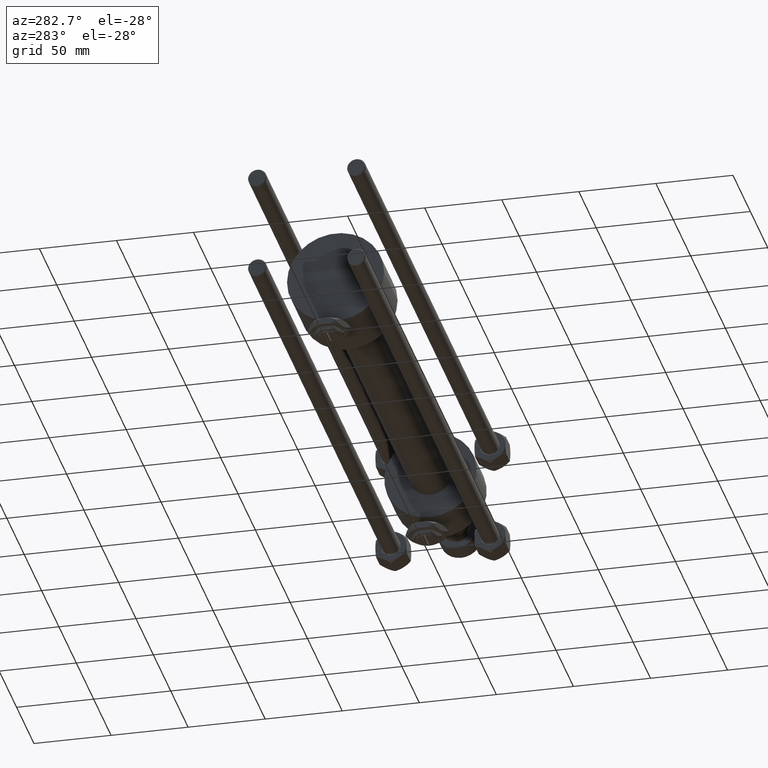
[diagram: clean part render]
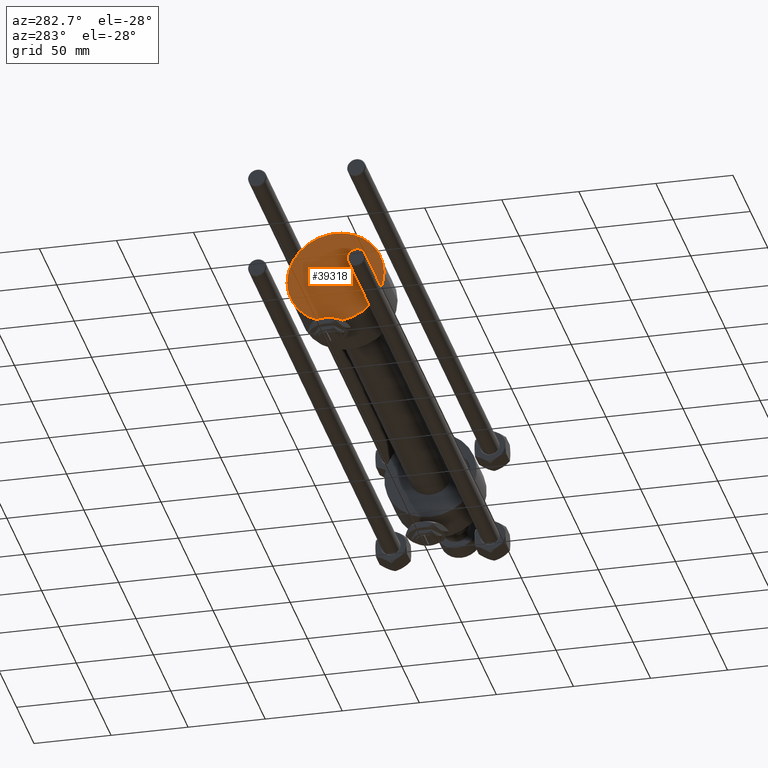
[diagram: same view with one face highlighted and labeled with its STEP entity id]
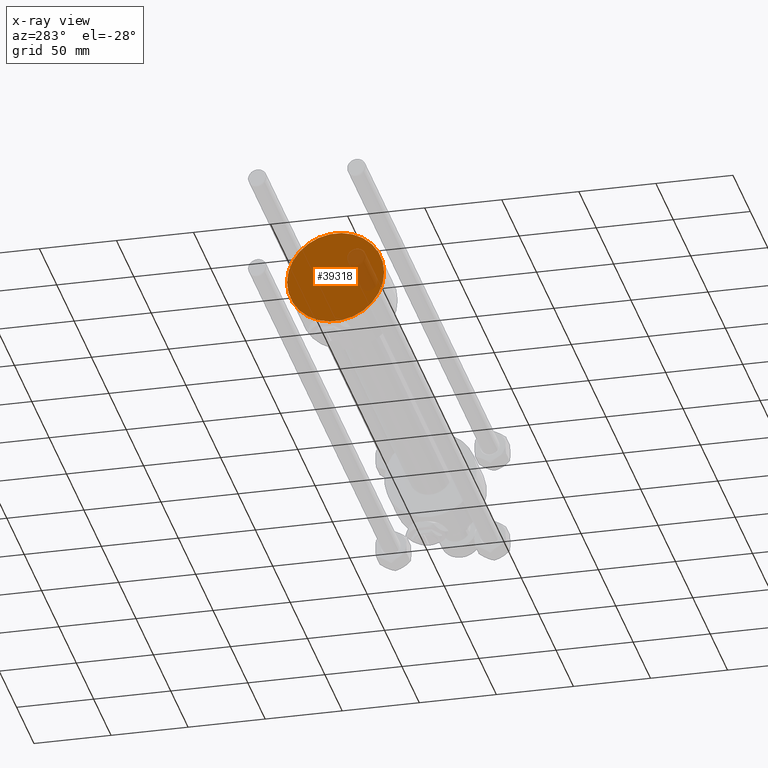
[diagram: x-ray of the same camera — body ghosted, the highlighted face saturated]
A machine part, auxiliary view. The second image highlights one B-rep face of the part: STEP entity #39318.
The next image is the same camera in x-ray: the body ghosted, the highlighted face saturated — about 12% of this face is hidden behind the body in this view.
In plain terms, the highlighted planar face has unit normal (1, 0, -0).
Its self-contained STEP definition (entity closure, byte-faithful):
#1423 = EDGE_CURVE ( 'NONE', #3693, #48627, #5555, .T. ) ;
#3693 = VERTEX_POINT ( 'NONE', #48370 ) ;
#5206 = CIRCLE ( 'NONE', #26283, 31.50000000000000000 ) ;
#5555 = CIRCLE ( 'NONE', #37624, 31.50000000000000000 ) ;
#6406 = EDGE_CURVE ( 'NONE', #48627, #3693, #5206, .T. ) ;
#6762 = ORIENTED_EDGE ( 'NONE', *, *, #6406, .F. ) ;
#10344 = CARTESIAN_POINT ( 'NONE',  ( -31.50000000000000000, 0.000000000000000000, 0.000000000000000000 ) ) ;
#12987 = CARTESIAN_POINT ( 'NONE',  ( 0.000000000000000000, 0.000000000000000000, 0.000000000000000000 ) ) ;
#14874 = EDGE_LOOP ( 'NONE', ( #6762, #24054 ) ) ;
#15425 = DIRECTION ( 'NONE',  ( 0.000000000000000000, 0.000000000000000000, 1.000000000000000000 ) ) ;
#16301 = AXIS2_PLACEMENT_3D ( 'NONE', #42683, #15425, #47708 ) ;
#22135 = CARTESIAN_POINT ( 'NONE',  ( 0.000000000000000000, 0.000000000000000000, 0.000000000000000000 ) ) ;
#24054 = ORIENTED_EDGE ( 'NONE', *, *, #1423, .F. ) ;
#25575 = DIRECTION ( 'NONE',  ( 1.000000000000000000, 0.000000000000000000, 0.000000000000000000 ) ) ;
#26283 = AXIS2_PLACEMENT_3D ( 'NONE', #22135, #46467, #25575 ) ;
#26808 = FACE_OUTER_BOUND ( 'NONE', #14874, .T. ) ;
#31559 = PLANE ( 'NONE',  #16301 ) ;
#37624 = AXIS2_PLACEMENT_3D ( 'NONE', #12987, #40505, #40241 ) ;
#39318 = ADVANCED_FACE ( 'NONE', ( #26808 ), #31559, .F. ) ;
#40241 = DIRECTION ( 'NONE',  ( 1.000000000000000000, 0.000000000000000000, 0.000000000000000000 ) ) ;
#40505 = DIRECTION ( 'NONE',  ( 0.000000000000000000, 0.000000000000000000, 1.000000000000000000 ) ) ;
#42683 = CARTESIAN_POINT ( 'NONE',  ( 0.000000000000000000, 0.000000000000000000, 0.000000000000000000 ) ) ;
#46467 = DIRECTION ( 'NONE',  ( 0.000000000000000000, 0.000000000000000000, 1.000000000000000000 ) ) ;
#47708 = DIRECTION ( 'NONE',  ( 1.000000000000000000, 0.000000000000000000, -0.000000000000000000 ) ) ;
#48370 = CARTESIAN_POINT ( 'NONE',  ( 31.50000000000000000, 3.857637417314162689E-15, 0.000000000000000000 ) ) ;
#48627 = VERTEX_POINT ( 'NONE', #10344 ) ;